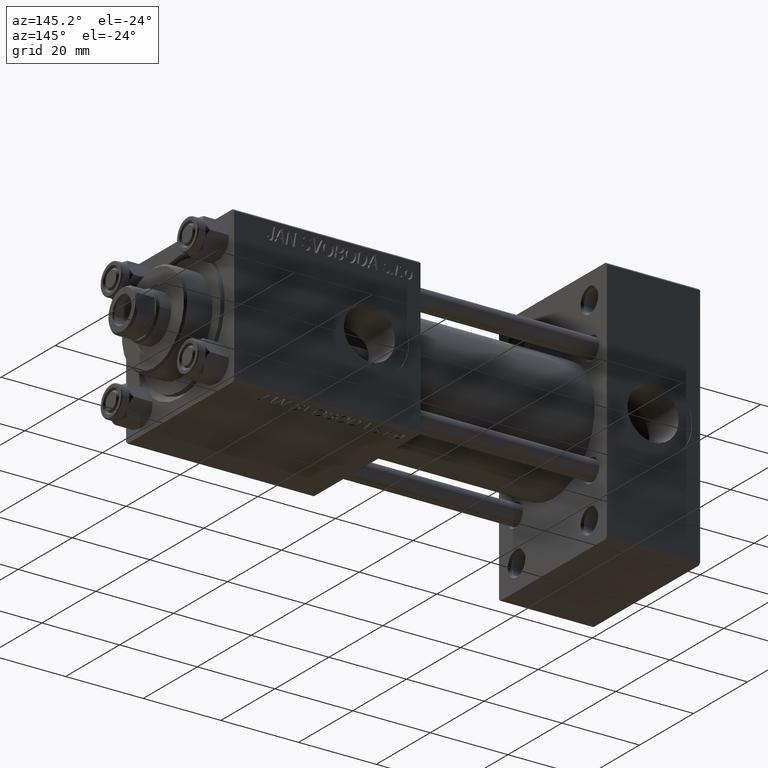
[diagram: clean part render]
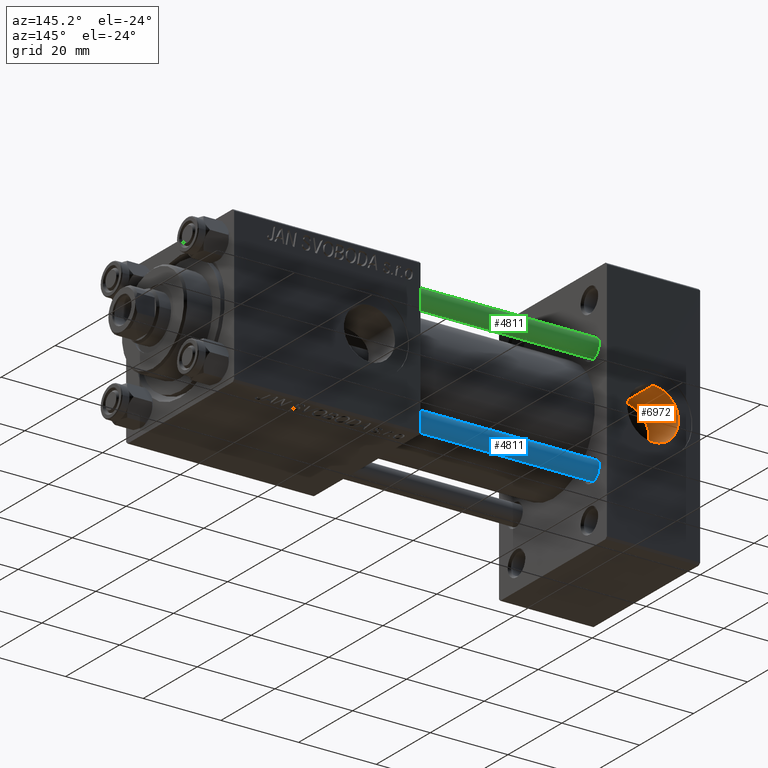
[diagram: same view with three faces highlighted in distinct colors, each labeled with its STEP entity id]
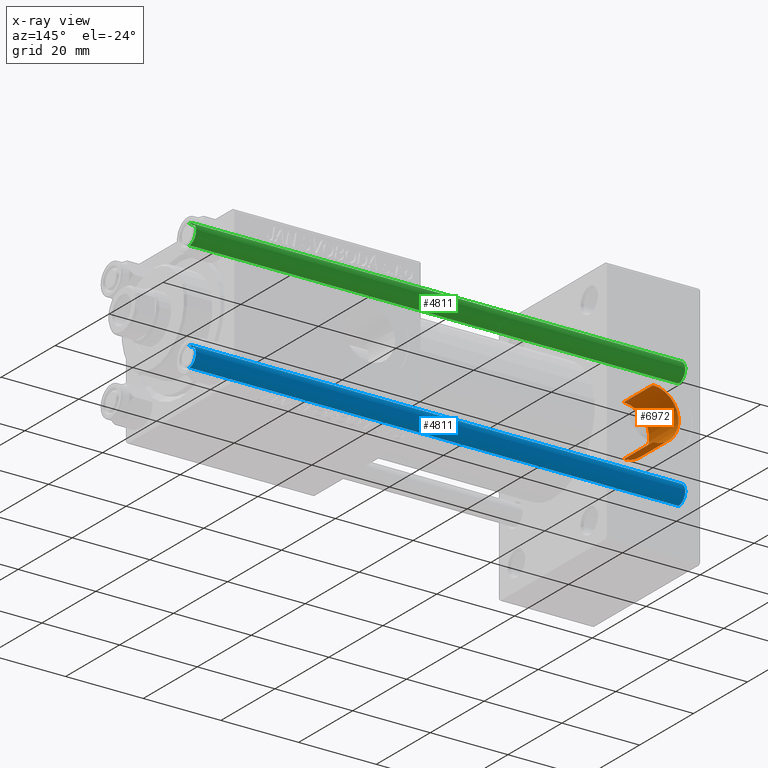
[diagram: x-ray of the same camera — body ghosted, the three highlighted faces saturated]
A machine part, auxiliary view with three faces highlighted in distinct colors.
The next image is the same camera in x-ray (body ghosted, the three faces saturated) — at least one of them is partly hidden behind the body in this view.
Their STEP definitions:

[orange] entity #6972 — the highlighted cylindrical surface (edge-blend (fillet) strip) has radius 6.58 mm, axis along (0, 1, 0).
#65 = VECTOR ( 'NONE', #34806, 1000.000000000000000 ) ;
#271 = CARTESIAN_POINT ( 'NONE',  ( 12.00000000000000000, 19.79999999999999716, 6.579999999999998295 ) ) ;
#3749 = CARTESIAN_POINT ( 'NONE',  ( 12.00000000000000000, 8.939999999999994174, 6.579999999999998295 ) ) ;
#4999 = EDGE_LOOP ( 'NONE', ( #20526, #47287, #5677, #24629 ) ) ;
#5558 = LINE ( 'NONE', #21978, #13003 ) ;
#5677 = ORIENTED_EDGE ( 'NONE', *, *, #6695, .T. ) ;
#5806 = CARTESIAN_POINT ( 'NONE',  ( 12.00000000000000000, 19.79999999999999716, 0.000000000000000000 ) ) ;
#6695 = EDGE_CURVE ( 'NONE', #23263, #49383, #45529, .T. ) ;
#6972 = ADVANCED_FACE ( 'NONE', ( #37830 ), #6996, .F. ) ;
#6996 = CYLINDRICAL_SURFACE ( 'NONE', #17282, 6.579999999999998295 ) ;
#7745 = LINE ( 'NONE', #11043, #65 ) ;
#9117 = CARTESIAN_POINT ( 'NONE',  ( 12.00000000000000000, 19.79999999999999716, -6.579999999999998295 ) ) ;
#11043 = CARTESIAN_POINT ( 'NONE',  ( 12.00000000000000000, 8.999999999999998224, 6.579999999999998295 ) ) ;
#11316 = CARTESIAN_POINT ( 'NONE',  ( 12.00000000000000000, 8.939999999999994174, 0.000000000000000000 ) ) ;
#13003 = VECTOR ( 'NONE', #30306, 1000.000000000000000 ) ;
#16710 = EDGE_CURVE ( 'NONE', #39163, #49500, #34807, .T. ) ;
#17041 = AXIS2_PLACEMENT_3D ( 'NONE', #11316, #26748, #38622 ) ;
#17282 = AXIS2_PLACEMENT_3D ( 'NONE', #34049, #30004, #18103 ) ;
#18103 = DIRECTION ( 'NONE',  ( 0.000000000000000000, 0.000000000000000000, 1.000000000000000000 ) ) ;
#20526 = ORIENTED_EDGE ( 'NONE', *, *, #16710, .T. ) ;
#21978 = CARTESIAN_POINT ( 'NONE',  ( 12.00000000000000000, 8.999999999999998224, -6.579999999999998295 ) ) ;
#23263 = VERTEX_POINT ( 'NONE', #9117 ) ;
#24629 = ORIENTED_EDGE ( 'NONE', *, *, #36236, .F. ) ;
#26748 = DIRECTION ( 'NONE',  ( -0.000000000000000000, -1.000000000000000000, -0.000000000000000000 ) ) ;
#30004 = DIRECTION ( 'NONE',  ( -0.000000000000000000, 1.000000000000000000, -0.000000000000000000 ) ) ;
#30306 = DIRECTION ( 'NONE',  ( -0.000000000000000000, 1.000000000000000000, -0.000000000000000000 ) ) ;
#34049 = CARTESIAN_POINT ( 'NONE',  ( 12.00000000000000000, 8.999999999999998224, 0.000000000000000000 ) ) ;
#34806 = DIRECTION ( 'NONE',  ( -0.000000000000000000, 1.000000000000000000, -0.000000000000000000 ) ) ;
#34807 = CIRCLE ( 'NONE', #17041, 6.579999999999998295 ) ;
#36236 = EDGE_CURVE ( 'NONE', #39163, #49383, #7745, .T. ) ;
#37830 = FACE_OUTER_BOUND ( 'NONE', #4999, .T. ) ;
#38295 = AXIS2_PLACEMENT_3D ( 'NONE', #5806, #40424, #44952 ) ;
#38622 = DIRECTION ( 'NONE',  ( 0.000000000000000000, 0.000000000000000000, 1.000000000000000000 ) ) ;
#39163 = VERTEX_POINT ( 'NONE', #3749 ) ;
#40424 = DIRECTION ( 'NONE',  ( 0.000000000000000000, 1.000000000000000000, 0.000000000000000000 ) ) ;
#41943 = EDGE_CURVE ( 'NONE', #49500, #23263, #5558, .T. ) ;
#44952 = DIRECTION ( 'NONE',  ( 0.000000000000000000, 0.000000000000000000, 1.000000000000000000 ) ) ;
#45173 = CARTESIAN_POINT ( 'NONE',  ( 12.00000000000000000, 8.939999999999994174, -6.579999999999998295 ) ) ;
#45529 = CIRCLE ( 'NONE', #38295, 6.579999999999998295 ) ;
#47287 = ORIENTED_EDGE ( 'NONE', *, *, #41943, .T. ) ;
#49383 = VERTEX_POINT ( 'NONE', #271 ) ;
#49500 = VERTEX_POINT ( 'NONE', #45173 ) ;

[blue] entity #4811 — the highlighted cylindrical surface (edge-blend (fillet) strip) has radius 2.5 mm, axis along (-1, 0, 0).
#2025 = AXIS2_PLACEMENT_3D ( 'NONE', #39499, #4893, #28625 ) ;
#3532 = CARTESIAN_POINT ( 'NONE',  ( 0.000000000000000000, 0.000000000000000000, 126.5000000000000000 ) ) ;
#4811 = ADVANCED_FACE ( 'NONE', ( #23835 ), #32415, .T. ) ;
#4893 = DIRECTION ( 'NONE',  ( -0.000000000000000000, -0.000000000000000000, -1.000000000000000000 ) ) ;
#5836 = EDGE_CURVE ( 'NONE', #43104, #49951, #19672, .T. ) ;
#6942 = CARTESIAN_POINT ( 'NONE',  ( 2.500000000000000000, 3.061616997868383141E-16, 126.5000000000000000 ) ) ;
#7066 = DIRECTION ( 'NONE',  ( 0.000000000000000000, 0.000000000000000000, -1.000000000000000000 ) ) ;
#7790 = DIRECTION ( 'NONE',  ( 1.000000000000000000, 0.000000000000000000, 0.000000000000000000 ) ) ;
#12905 = ORIENTED_EDGE ( 'NONE', *, *, #30878, .T. ) ;
#13392 = CARTESIAN_POINT ( 'NONE',  ( -2.500000000000000000, 0.000000000000000000, 127.0000000000000000 ) ) ;
#14505 = EDGE_CURVE ( 'NONE', #43104, #33169, #28847, .T. ) ;
#18590 = VERTEX_POINT ( 'NONE', #33721 ) ;
#19672 = CIRCLE ( 'NONE', #47104, 2.500000000000000000 ) ;
#21018 = CARTESIAN_POINT ( 'NONE',  ( -2.500000000000000000, 0.000000000000000000, 126.5000000000000000 ) ) ;
#21257 = CARTESIAN_POINT ( 'NONE',  ( 2.500000000000000000, 3.061616997868383141E-16, 127.0000000000000000 ) ) ;
#21747 = CARTESIAN_POINT ( 'NONE',  ( 0.000000000000000000, 0.000000000000000000, 0.5000000000000004441 ) ) ;
#23835 = FACE_OUTER_BOUND ( 'NONE', #34830, .T. ) ;
#26544 = EDGE_CURVE ( 'NONE', #18590, #33169, #36841, .T. ) ;
#28577 = LINE ( 'NONE', #13392, #32115 ) ;
#28625 = DIRECTION ( 'NONE',  ( -1.000000000000000000, 0.000000000000000000, 0.000000000000000000 ) ) ;
#28847 = LINE ( 'NONE', #21257, #44989 ) ;
#29100 = DIRECTION ( 'NONE',  ( -0.000000000000000000, -0.000000000000000000, -1.000000000000000000 ) ) ;
#29741 = ORIENTED_EDGE ( 'NONE', *, *, #5836, .T. ) ;
#30878 = EDGE_CURVE ( 'NONE', #49951, #18590, #28577, .T. ) ;
#32115 = VECTOR ( 'NONE', #47753, 1000.000000000000000 ) ;
#32415 = CYLINDRICAL_SURFACE ( 'NONE', #2025, 2.500000000000000000 ) ;
#33169 = VERTEX_POINT ( 'NONE', #41364 ) ;
#33721 = CARTESIAN_POINT ( 'NONE',  ( -2.500000000000000000, 0.000000000000000000, 0.5000000000000004441 ) ) ;
#33878 = DIRECTION ( 'NONE',  ( 1.000000000000000000, 0.000000000000000000, 0.000000000000000000 ) ) ;
#34348 = ORIENTED_EDGE ( 'NONE', *, *, #26544, .T. ) ;
#34830 = EDGE_LOOP ( 'NONE', ( #40969, #29741, #12905, #34348 ) ) ;
#36010 = AXIS2_PLACEMENT_3D ( 'NONE', #21747, #38153, #33878 ) ;
#36841 = CIRCLE ( 'NONE', #36010, 2.500000000000000000 ) ;
#38153 = DIRECTION ( 'NONE',  ( -0.000000000000000000, -0.000000000000000000, 1.000000000000000000 ) ) ;
#39499 = CARTESIAN_POINT ( 'NONE',  ( 0.000000000000000000, 0.000000000000000000, 127.0000000000000000 ) ) ;
#40969 = ORIENTED_EDGE ( 'NONE', *, *, #14505, .F. ) ;
#41364 = CARTESIAN_POINT ( 'NONE',  ( 2.500000000000000000, 3.061616997868383141E-16, 0.5000000000000004441 ) ) ;
#43104 = VERTEX_POINT ( 'NONE', #6942 ) ;
#44989 = VECTOR ( 'NONE', #29100, 1000.000000000000000 ) ;
#47104 = AXIS2_PLACEMENT_3D ( 'NONE', #3532, #7066, #7790 ) ;
#47753 = DIRECTION ( 'NONE',  ( -0.000000000000000000, -0.000000000000000000, -1.000000000000000000 ) ) ;
#49951 = VERTEX_POINT ( 'NONE', #21018 ) ;

[green] entity #4811 — the highlighted cylindrical surface (edge-blend (fillet) strip) has radius 2.5 mm, axis along (1, 0, 0).
#2025 = AXIS2_PLACEMENT_3D ( 'NONE', #39499, #4893, #28625 ) ;
#3532 = CARTESIAN_POINT ( 'NONE',  ( 0.000000000000000000, 0.000000000000000000, 126.5000000000000000 ) ) ;
#4811 = ADVANCED_FACE ( 'NONE', ( #23835 ), #32415, .T. ) ;
#4893 = DIRECTION ( 'NONE',  ( -0.000000000000000000, -0.000000000000000000, -1.000000000000000000 ) ) ;
#5836 = EDGE_CURVE ( 'NONE', #43104, #49951, #19672, .T. ) ;
#6942 = CARTESIAN_POINT ( 'NONE',  ( 2.500000000000000000, 3.061616997868383141E-16, 126.5000000000000000 ) ) ;
#7066 = DIRECTION ( 'NONE',  ( 0.000000000000000000, 0.000000000000000000, -1.000000000000000000 ) ) ;
#7790 = DIRECTION ( 'NONE',  ( 1.000000000000000000, 0.000000000000000000, 0.000000000000000000 ) ) ;
#12905 = ORIENTED_EDGE ( 'NONE', *, *, #30878, .T. ) ;
#13392 = CARTESIAN_POINT ( 'NONE',  ( -2.500000000000000000, 0.000000000000000000, 127.0000000000000000 ) ) ;
#14505 = EDGE_CURVE ( 'NONE', #43104, #33169, #28847, .T. ) ;
#18590 = VERTEX_POINT ( 'NONE', #33721 ) ;
#19672 = CIRCLE ( 'NONE', #47104, 2.500000000000000000 ) ;
#21018 = CARTESIAN_POINT ( 'NONE',  ( -2.500000000000000000, 0.000000000000000000, 126.5000000000000000 ) ) ;
#21257 = CARTESIAN_POINT ( 'NONE',  ( 2.500000000000000000, 3.061616997868383141E-16, 127.0000000000000000 ) ) ;
#21747 = CARTESIAN_POINT ( 'NONE',  ( 0.000000000000000000, 0.000000000000000000, 0.5000000000000004441 ) ) ;
#23835 = FACE_OUTER_BOUND ( 'NONE', #34830, .T. ) ;
#26544 = EDGE_CURVE ( 'NONE', #18590, #33169, #36841, .T. ) ;
#28577 = LINE ( 'NONE', #13392, #32115 ) ;
#28625 = DIRECTION ( 'NONE',  ( -1.000000000000000000, 0.000000000000000000, 0.000000000000000000 ) ) ;
#28847 = LINE ( 'NONE', #21257, #44989 ) ;
#29100 = DIRECTION ( 'NONE',  ( -0.000000000000000000, -0.000000000000000000, -1.000000000000000000 ) ) ;
#29741 = ORIENTED_EDGE ( 'NONE', *, *, #5836, .T. ) ;
#30878 = EDGE_CURVE ( 'NONE', #49951, #18590, #28577, .T. ) ;
#32115 = VECTOR ( 'NONE', #47753, 1000.000000000000000 ) ;
#32415 = CYLINDRICAL_SURFACE ( 'NONE', #2025, 2.500000000000000000 ) ;
#33169 = VERTEX_POINT ( 'NONE', #41364 ) ;
#33721 = CARTESIAN_POINT ( 'NONE',  ( -2.500000000000000000, 0.000000000000000000, 0.5000000000000004441 ) ) ;
#33878 = DIRECTION ( 'NONE',  ( 1.000000000000000000, 0.000000000000000000, 0.000000000000000000 ) ) ;
#34348 = ORIENTED_EDGE ( 'NONE', *, *, #26544, .T. ) ;
#34830 = EDGE_LOOP ( 'NONE', ( #40969, #29741, #12905, #34348 ) ) ;
#36010 = AXIS2_PLACEMENT_3D ( 'NONE', #21747, #38153, #33878 ) ;
#36841 = CIRCLE ( 'NONE', #36010, 2.500000000000000000 ) ;
#38153 = DIRECTION ( 'NONE',  ( -0.000000000000000000, -0.000000000000000000, 1.000000000000000000 ) ) ;
#39499 = CARTESIAN_POINT ( 'NONE',  ( 0.000000000000000000, 0.000000000000000000, 127.0000000000000000 ) ) ;
#40969 = ORIENTED_EDGE ( 'NONE', *, *, #14505, .F. ) ;
#41364 = CARTESIAN_POINT ( 'NONE',  ( 2.500000000000000000, 3.061616997868383141E-16, 0.5000000000000004441 ) ) ;
#43104 = VERTEX_POINT ( 'NONE', #6942 ) ;
#44989 = VECTOR ( 'NONE', #29100, 1000.000000000000000 ) ;
#47104 = AXIS2_PLACEMENT_3D ( 'NONE', #3532, #7066, #7790 ) ;
#47753 = DIRECTION ( 'NONE',  ( -0.000000000000000000, -0.000000000000000000, -1.000000000000000000 ) ) ;
#49951 = VERTEX_POINT ( 'NONE', #21018 ) ;